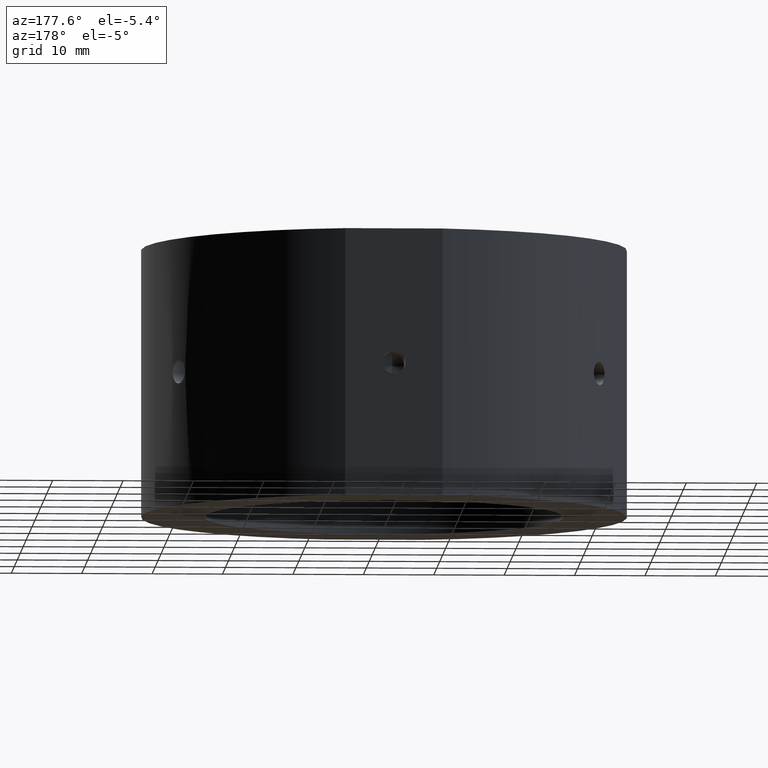
[diagram: clean part render]
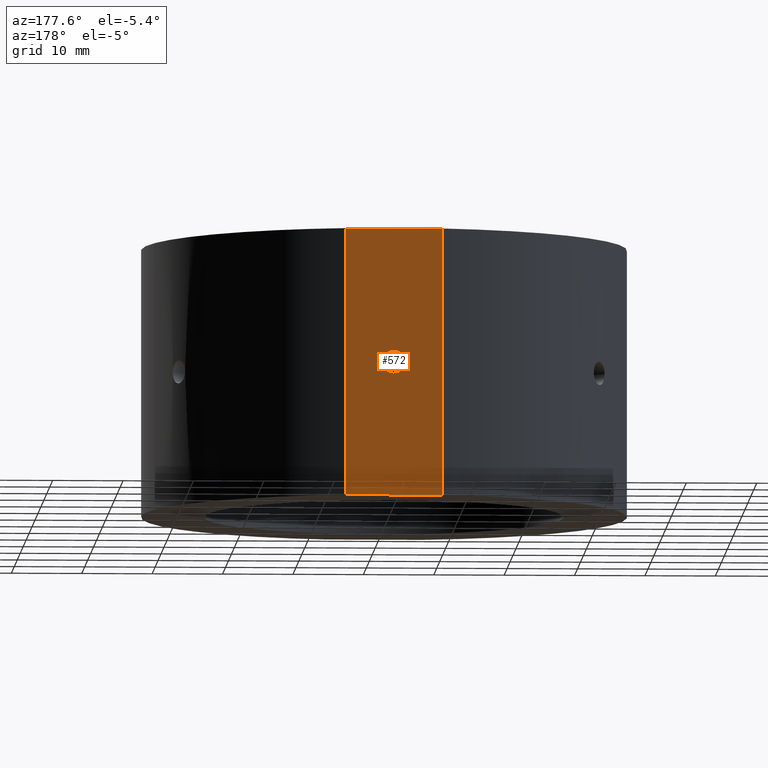
[diagram: same view with one face highlighted and labeled with its STEP entity id]
A machine part, auxiliary view. The second image highlights one B-rep face of the part: STEP entity #572.
In plain terms, the highlighted planar face has unit normal (0, -1, 0).
Its self-contained STEP definition (entity closure, byte-faithful):
#13 = EDGE_CURVE ( 'NONE', #351, #424, #192, .T. ) ;
#66 = DIRECTION ( 'NONE',  ( 1.000000000000000000, 0.0000000000000000000, -1.224646799147350500E-016 ) ) ;
#68 = VERTEX_POINT ( 'NONE', #296 ) ;
#74 = DIRECTION ( 'NONE',  ( -1.224646799147350500E-016, -0.0000000000000000000, -1.000000000000000000 ) ) ;
#87 = ORIENTED_EDGE ( 'NONE', *, *, #508, .F. ) ;
#168 = CARTESIAN_POINT ( 'NONE',  ( 6.071532165918824800E-015, 33.79999999999999700, 0.0000000000000000000 ) ) ;
#192 = LINE ( 'NONE', #1303, #1008 ) ;
#206 = EDGE_CURVE ( 'NONE', #424, #877, #341, .T. ) ;
#211 = LINE ( 'NONE', #1259, #262 ) ;
#219 = VECTOR ( 'NONE', #74, 1000.000000000000000 ) ;
#262 = VECTOR ( 'NONE', #1242, 1000.000000000000000 ) ;
#275 = CARTESIAN_POINT ( 'NONE',  ( -6.914477565225098500, 33.79999999999998300, -31.93906810035839800 ) ) ;
#296 = CARTESIAN_POINT ( 'NONE',  ( 6.914477565225100300, 33.79999999999998300, -18.99999999999999600 ) ) ;
#333 = CARTESIAN_POINT ( 'NONE',  ( -33.15197265346817100, 33.79999999999999700, -30.00000000000002500 ) ) ;
#341 = LINE ( 'NONE', #275, #219 ) ;
#351 = VERTEX_POINT ( 'NONE', #548 ) ;
#370 = LINE ( 'NONE', #846, #918 ) ;
#380 = VERTEX_POINT ( 'NONE', #1429 ) ;
#382 = AXIS2_PLACEMENT_3D ( 'NONE', #488, #814, #923 ) ;
#401 = DIRECTION ( 'NONE',  ( -0.0000000000000000000, 1.000000000000000000, -0.0000000000000000000 ) ) ;
#424 = VERTEX_POINT ( 'NONE', #821 ) ;
#488 = CARTESIAN_POINT ( 'NONE',  ( 6.071532165918824800E-015, 33.79999999999999700, 0.0000000000000000000 ) ) ;
#508 = EDGE_CURVE ( 'NONE', #68, #351, #211, .T. ) ;
#548 = CARTESIAN_POINT ( 'NONE',  ( 6.914477565225042500, 33.79999999999999700, 19.00000000000000000 ) ) ;
#572 = ADVANCED_FACE ( 'NONE', ( #1010, #746 ), #884, .F. ) ;
#608 = CIRCLE ( 'NONE', #382, 1.649999999999989900 ) ;
#693 = DIRECTION ( 'NONE',  ( 0.0000000000000000000, -0.0000000000000000000, -1.000000000000000000 ) ) ;
#746 = FACE_OUTER_BOUND ( 'NONE', #1227, .T. ) ;
#755 = AXIS2_PLACEMENT_3D ( 'NONE', #168, #401, #1288 ) ;
#791 = ORIENTED_EDGE ( 'NONE', *, *, #1002, .F. ) ;
#795 = EDGE_CURVE ( 'NONE', #380, #797, #608, .T. ) ;
#797 = VERTEX_POINT ( 'NONE', #1144 ) ;
#814 = DIRECTION ( 'NONE',  ( -0.0000000000000000000, 1.000000000000000000, -0.0000000000000000000 ) ) ;
#821 = CARTESIAN_POINT ( 'NONE',  ( -6.914477565225030100, 33.79999999999999700, 19.00000000000000400 ) ) ;
#846 = CARTESIAN_POINT ( 'NONE',  ( 25.50000000000000000, 33.79999999999999700, -19.00000000000000400 ) ) ;
#877 = VERTEX_POINT ( 'NONE', #1131 ) ;
#884 = PLANE ( 'NONE',  #1379 ) ;
#918 = VECTOR ( 'NONE', #66, 1000.000000000000000 ) ;
#923 = DIRECTION ( 'NONE',  ( 0.0000000000000000000, 0.0000000000000000000, 1.000000000000000000 ) ) ;
#1002 = EDGE_CURVE ( 'NONE', #797, #380, #1085, .T. ) ;
#1008 = VECTOR ( 'NONE', #1405, 1000.000000000000000 ) ;
#1010 = FACE_BOUND ( 'NONE', #1088, .T. ) ;
#1085 = CIRCLE ( 'NONE', #755, 1.649999999999989900 ) ;
#1088 = EDGE_LOOP ( 'NONE', ( #1210, #791 ) ) ;
#1131 = CARTESIAN_POINT ( 'NONE',  ( -6.914477565225034500, 33.79999999999999700, -19.00000000000000000 ) ) ;
#1144 = CARTESIAN_POINT ( 'NONE',  ( 6.273598887778137200E-015, 33.79999999999999700, -1.649999999999989900 ) ) ;
#1210 = ORIENTED_EDGE ( 'NONE', *, *, #795, .F. ) ;
#1220 = DIRECTION ( 'NONE',  ( 0.0000000000000000000, -1.000000000000000000, 0.0000000000000000000 ) ) ;
#1227 = EDGE_LOOP ( 'NONE', ( #1368, #87, #1338, #1418 ) ) ;
#1240 = EDGE_CURVE ( 'NONE', #877, #68, #370, .T. ) ;
#1242 = DIRECTION ( 'NONE',  ( 1.224646799147350500E-016, 0.0000000000000000000, 1.000000000000000000 ) ) ;
#1259 = CARTESIAN_POINT ( 'NONE',  ( 6.914477565225098500, 33.79999999999998300, -31.93906810035839800 ) ) ;
#1288 = DIRECTION ( 'NONE',  ( 0.0000000000000000000, 0.0000000000000000000, 1.000000000000000000 ) ) ;
#1303 = CARTESIAN_POINT ( 'NONE',  ( 34.50000000000000700, 33.79999999999999700, 18.99999999999999600 ) ) ;
#1338 = ORIENTED_EDGE ( 'NONE', *, *, #1240, .F. ) ;
#1368 = ORIENTED_EDGE ( 'NONE', *, *, #13, .F. ) ;
#1379 = AXIS2_PLACEMENT_3D ( 'NONE', #333, #1220, #693 ) ;
#1405 = DIRECTION ( 'NONE',  ( -1.000000000000000000, 0.0000000000000000000, 1.224646799147350500E-016 ) ) ;
#1418 = ORIENTED_EDGE ( 'NONE', *, *, #206, .F. ) ;
#1429 = CARTESIAN_POINT ( 'NONE',  ( 6.071532165918824800E-015, 33.79999999999999700, 1.649999999999989900 ) ) ;